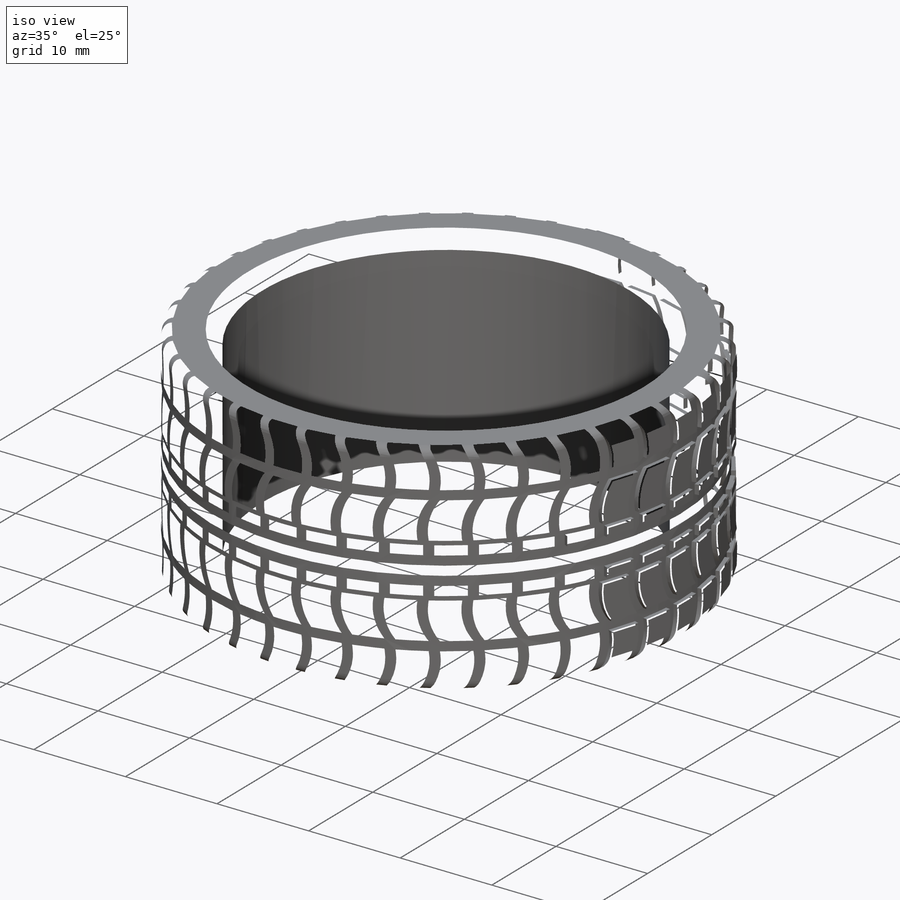
[diagram: iso view]
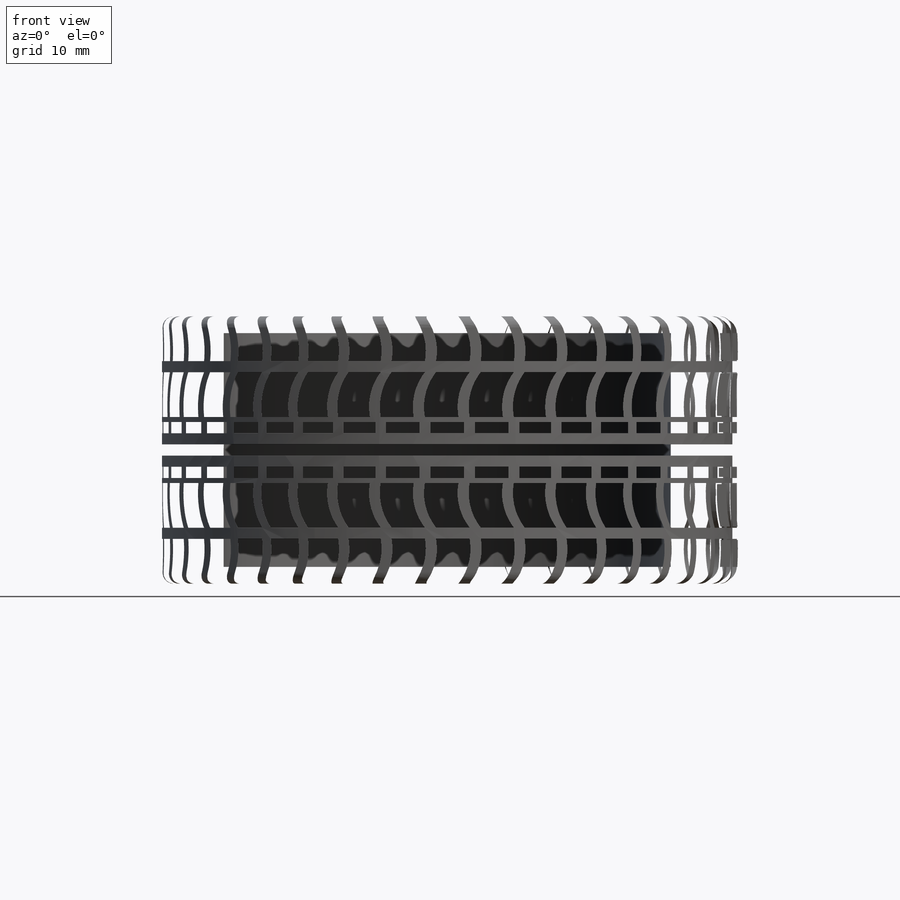
[diagram: front view]
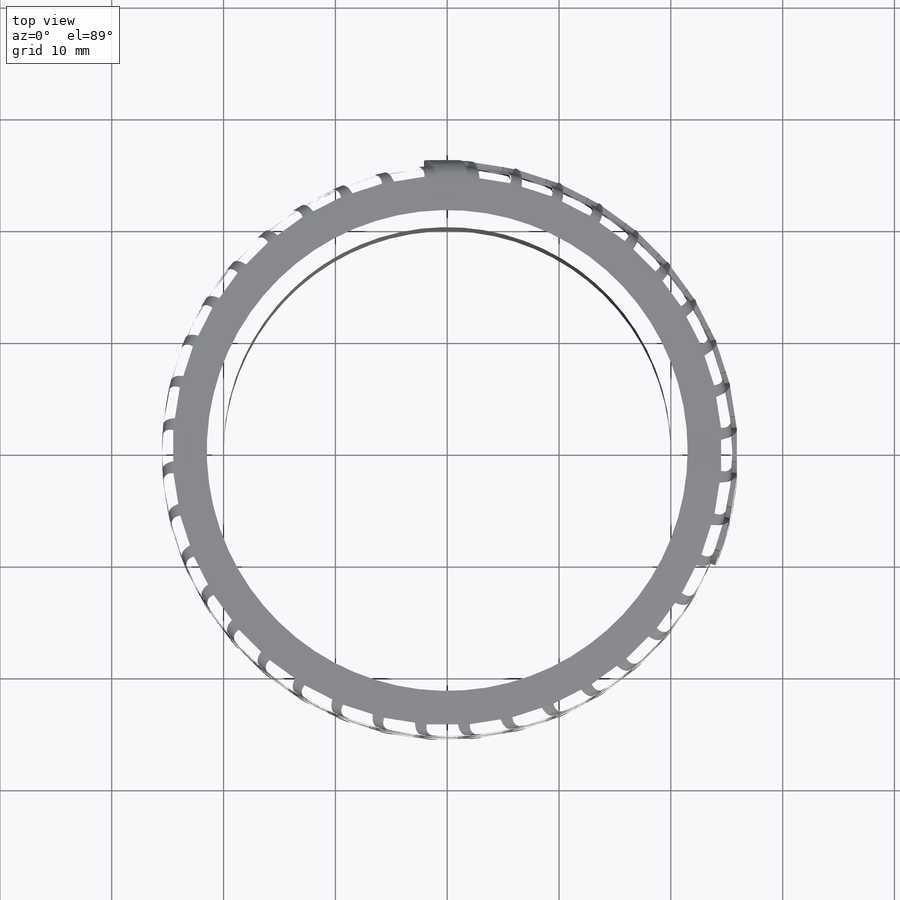
[diagram: top view]
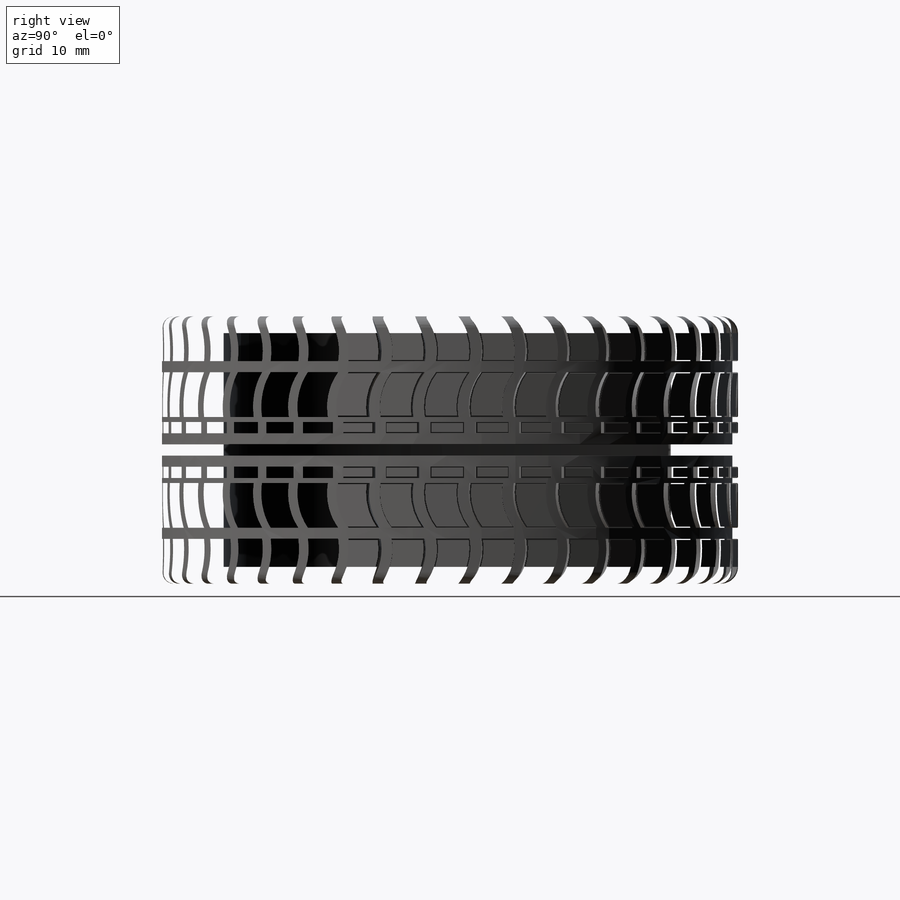
[diagram: right view]
SOLIDWORKS PART (.sldprt)
format: sldprt  version: not decoded by parser v0  size: 9,494,016 bytes
history: native  units: mm
features: fillet x5, plane x4, sketch x4, revolve x2, material x1, extrude x1, pattern_circular x1 (+10 scaffold rows collapsed)
feature tree (28):
  scaffold x10  (default folders/planes/origin — collapsed)
  material  "橡胶"
  plane  "前视基准面"
  plane  "上视基准面"
  plane  "右视基准面"
  sketch  "草图1"  dims[D9=1.5mm D10=0.2mm D11=0.2mm D1=24.3mm D2=1.85mm D3=3.85mm D4=1.0mm D5=1.0mm D6=20.0mm D7=18.0mm D8=3.5mm]
  sketch  "草图2"  dims[D1=25.5mm D2=20.0mm D3=23.9mm]
  revolve  "旋转2"  Angle=360deg
  plane  "基准面1"  Offset=24mm
  sketch  "草图3"  dims[c1.D8=3.0mm c1.D9=~2.915476mm c2.D8=5.0mm c2.D9=5.0mm c2.D17=5.0mm c2.D18=5.0mm c2.D1=~1.417486mm c2.D2=~6.35197mm c3.D1=1.0mm c3.D2=3.0mm c3.D3=3.0mm c3.D4=3.0mm c3.D5=2.0mm c3.D6=2.0mm c3.D7=4.0mm c3.D10=1.5mm c3.D11=4.0mm c3.D12=1.0mm c3.D13=2.0mm c3.D14=3.0mm c3.D15=3.0mm c3.D16=2.0mm]
  extrude  "凸台-拉伸1"  Depth=2mm
  sketch  "草图4"  dims[D3=0.2mm D1=0.5mm D2=0.6mm]
  fillet  "圆角3"  Radius=1mm
  fillet  "圆角4"  Radius=0.1mm
  fillet  "圆角5"  Radius=1.5mm
  fillet  "圆角6"  Radius=0.1mm
  pattern_circular  "阵列(圆周)1"  Count=40 Angle=9deg
  revolve  "旋转3"  Angle=360deg
  fillet  "圆角7"  Radius=1.5mm
decode coverage: 13 of 13 modeling features carry decoded parameters
note: ~ marks probable driven/reference dimensions
note: suppression state not decoded; provenance and decode notes live in map.json
